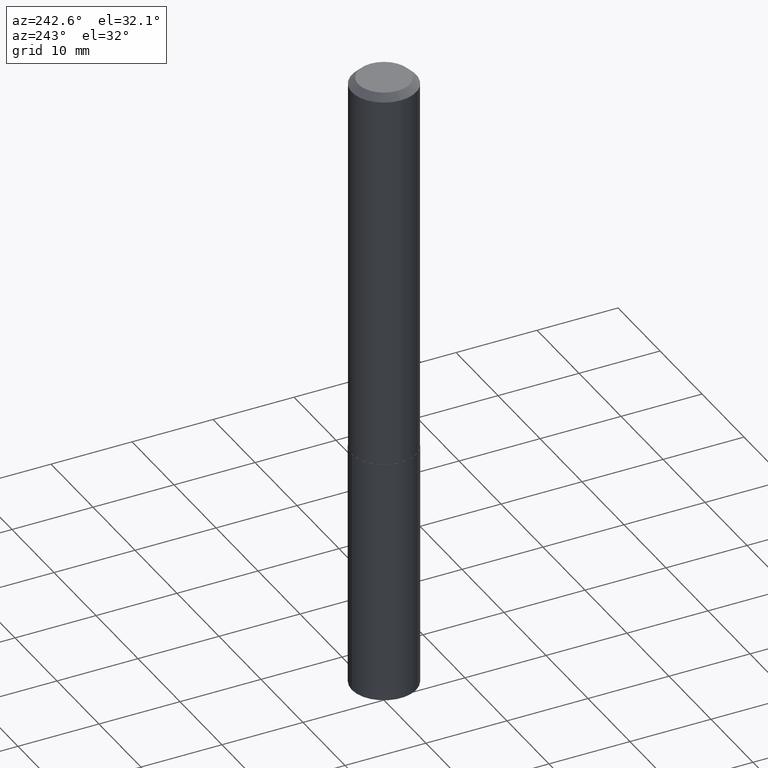
[diagram: clean part render]
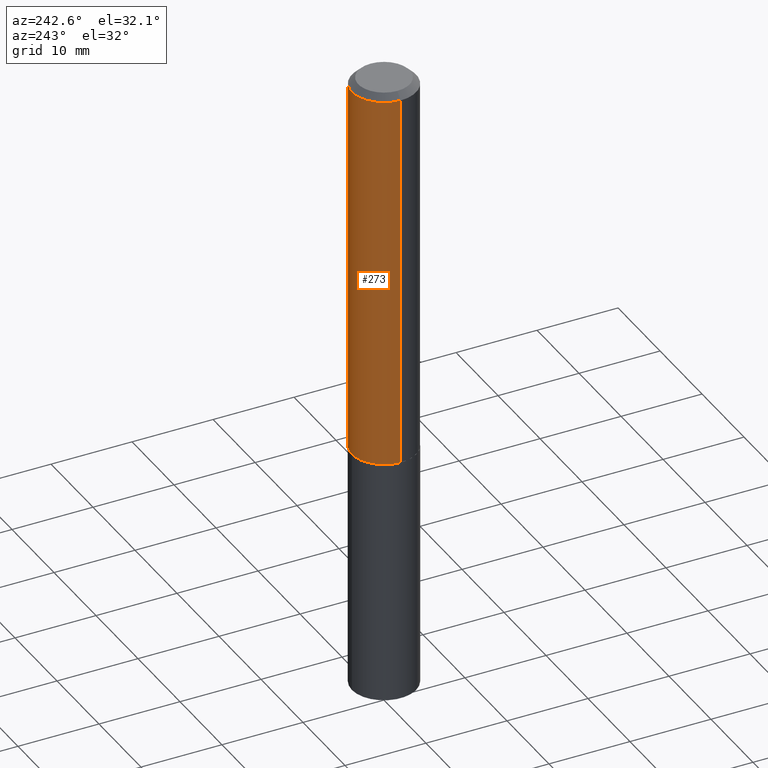
[diagram: same view with one face highlighted and labeled with its STEP entity id]
A machine part, auxiliary view. The second image highlights one B-rep face of the part: STEP entity #273.
In plain terms, the highlighted cylindrical surface (edge-blend (fillet) strip) has radius 3.9688 mm, axis along (-0, 0, 1).
Its self-contained STEP definition (entity closure, byte-faithful):
#5 = CIRCLE ( 'NONE', #385, 0.1562500000000000000 ) ;
#9 = EDGE_CURVE ( 'NONE', #51, #116, #178, .T. ) ;
#14 = VECTOR ( 'NONE', #381, 39.37007874015748143 ) ;
#16 = LINE ( 'NONE', #236, #14 ) ;
#21 = ORIENTED_EDGE ( 'NONE', *, *, #387, .F. ) ;
#43 = DIRECTION ( 'NONE',  ( -2.445468806185136597E-29, 3.491481338843145583E-15, 1.000000000000000000 ) ) ;
#51 = VERTEX_POINT ( 'NONE', #91 ) ;
#71 = AXIS2_PLACEMENT_3D ( 'NONE', #195, #43, #197 ) ;
#74 = ORIENTED_EDGE ( 'NONE', *, *, #9, .F. ) ;
#87 = FACE_OUTER_BOUND ( 'NONE', #341, .T. ) ;
#91 = CARTESIAN_POINT ( 'NONE',  ( 0.1562500000000002776, -7.637615428719380247E-15, -1.875000000000000000 ) ) ;
#96 = EDGE_CURVE ( 'NONE', #51, #384, #353, .T. ) ;
#102 = DIRECTION ( 'NONE',  ( 1.000000000000000000, -6.982962677686265133E-15, 0.000000000000000000 ) ) ;
#116 = VERTEX_POINT ( 'NONE', #138 ) ;
#138 = CARTESIAN_POINT ( 'NONE',  ( 0.1562500000000000000, -1.200196710227328077E-15, -0.03125000000000021511 ) ) ;
#147 = CARTESIAN_POINT ( 'NONE',  ( -0.1562500000000002776, -5.436304485705739800E-15, -1.875000000000000000 ) ) ;
#169 = ORIENTED_EDGE ( 'NONE', *, *, #96, .T. ) ;
#178 = LINE ( 'NONE', #331, #310 ) ;
#195 = CARTESIAN_POINT ( 'NONE',  ( 4.585254011597131119E-29, -6.546527510330898707E-15, -1.875000000000000000 ) ) ;
#197 = DIRECTION ( 'NONE',  ( 1.000000000000000000, -6.982962677686269077E-15, 0.000000000000000000 ) ) ;
#204 = CYLINDRICAL_SURFACE ( 'NONE', #256, 0.1562500000000001388 ) ;
#213 = EDGE_CURVE ( 'NONE', #384, #240, #16, .T. ) ;
#236 = CARTESIAN_POINT ( 'NONE',  ( -0.1562500000000001388, 1.110223024625157526E-15, -7.685836078523296765E-30 ) ) ;
#240 = VERTEX_POINT ( 'NONE', #258 ) ;
#252 = CARTESIAN_POINT ( 'NONE',  ( 0.000000000000000000, 0.000000000000000000, 0.000000000000000000 ) ) ;
#256 = AXIS2_PLACEMENT_3D ( 'NONE', #252, #327, #295 ) ;
#258 = CARTESIAN_POINT ( 'NONE',  ( -0.1562500000000000000, -2.217595126459715391E-15, -0.03125000000000021511 ) ) ;
#266 = ORIENTED_EDGE ( 'NONE', *, *, #213, .T. ) ;
#270 = CARTESIAN_POINT ( 'NONE',  ( 7.642090019328604414E-31, -1.091087918388490513E-16, -0.03125000000000021511 ) ) ;
#273 = ADVANCED_FACE ( 'NONE', ( #87 ), #204, .T. ) ;
#295 = DIRECTION ( 'NONE',  ( 1.000000000000000000, -6.982962677686266711E-15, 4.876176775795936353E-29 ) ) ;
#301 = DIRECTION ( 'NONE',  ( -2.445468806185136877E-29, 3.491481338843145188E-15, 1.000000000000000000 ) ) ;
#310 = VECTOR ( 'NONE', #301, 39.37007874015748143 ) ;
#327 = DIRECTION ( 'NONE',  ( -2.445468806185136597E-29, 3.491481338843145583E-15, 1.000000000000000000 ) ) ;
#331 = CARTESIAN_POINT ( 'NONE',  ( 0.1562500000000001388, -1.091087918388480160E-15, 7.619026212181157383E-30 ) ) ;
#341 = EDGE_LOOP ( 'NONE', ( #169, #266, #21, #74 ) ) ;
#353 = CIRCLE ( 'NONE', #71, 0.1562500000000002776 ) ;
#381 = DIRECTION ( 'NONE',  ( -2.445468806185136877E-29, 3.491481338843145188E-15, 1.000000000000000000 ) ) ;
#384 = VERTEX_POINT ( 'NONE', #147 ) ;
#385 = AXIS2_PLACEMENT_3D ( 'NONE', #270, #386, #102 ) ;
#386 = DIRECTION ( 'NONE',  ( -2.445468806185136597E-29, 3.491481338843145583E-15, 1.000000000000000000 ) ) ;
#387 = EDGE_CURVE ( 'NONE', #116, #240, #5, .T. ) ;